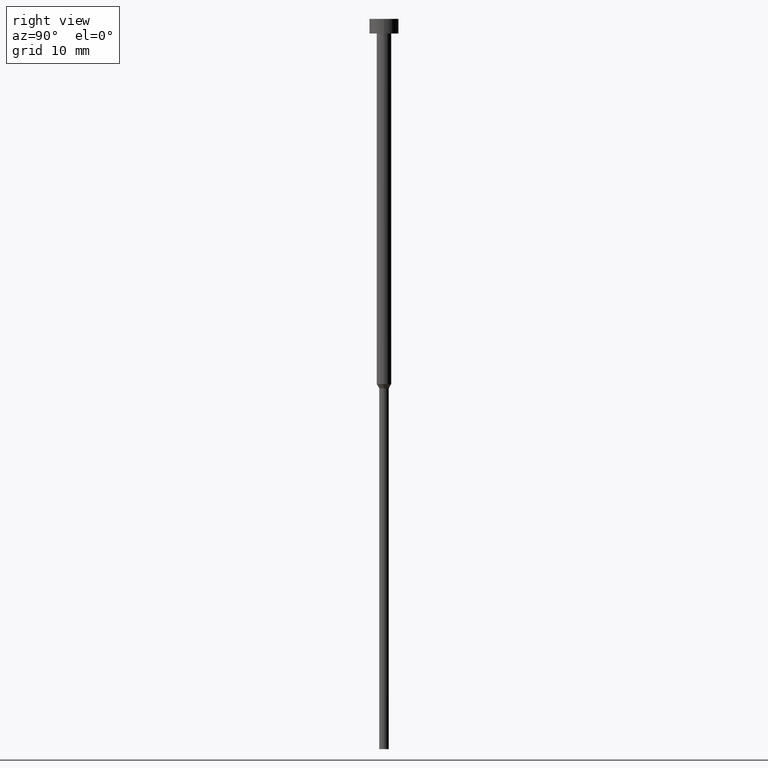
[diagram: clean part render]
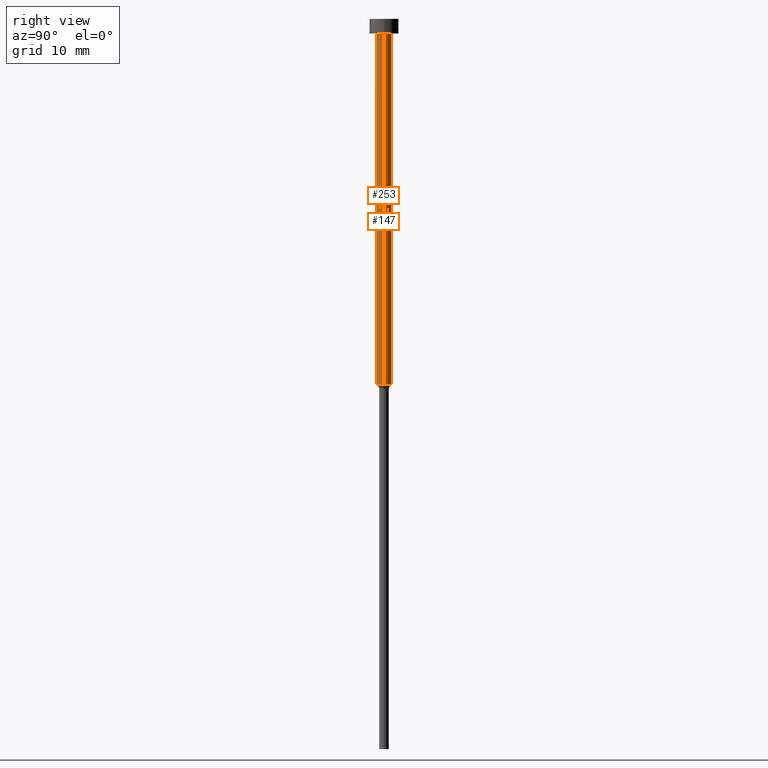
[diagram: same view with one multi-face feature highlighted, each face labeled with its STEP entity id]
A machine part, right view. The highlighted faces form ONE feature: a constant-radius fillet chain: 2 tangent blend faces with common blend radius 1 mm. The faces share edges in the B-rep.
Their STEP definitions:
[1] entity #147 (Cylinder):
#34 = CIRCLE ( 'NONE', #74, 1.000000000000003553 ) ;
#37 = EDGE_CURVE ( 'NONE', #295, #103, #34, .T. ) ;
#44 = EDGE_LOOP ( 'NONE', ( #124, #178, #60, #153 ) ) ;
#55 = CARTESIAN_POINT ( 'NONE',  ( -1.000000000000003331, 1.224646799147357151E-16, 0.000000000000000000 ) ) ;
#60 = ORIENTED_EDGE ( 'NONE', *, *, #37, .F. ) ;
#72 = CARTESIAN_POINT ( 'NONE',  ( 1.000000000000003109, 0.000000000000000000, -50.00000000000000000 ) ) ;
#74 = AXIS2_PLACEMENT_3D ( 'NONE', #234, #235, #339 ) ;
#79 = DIRECTION ( 'NONE',  ( -0.000000000000000000, -0.000000000000000000, 1.000000000000000000 ) ) ;
#92 = VERTEX_POINT ( 'NONE', #72 ) ;
#103 = VERTEX_POINT ( 'NONE', #211 ) ;
#108 = LINE ( 'NONE', #336, #135 ) ;
#121 = CARTESIAN_POINT ( 'NONE',  ( 0.000000000000000000, 0.000000000000000000, 0.000000000000000000 ) ) ;
#124 = ORIENTED_EDGE ( 'NONE', *, *, #344, .T. ) ;
#133 = LINE ( 'NONE', #55, #241 ) ;
#135 = VECTOR ( 'NONE', #273, 1000.000000000000000 ) ;
#142 = DIRECTION ( 'NONE',  ( -0.000000000000000000, -0.000000000000000000, 1.000000000000000000 ) ) ;
#147 = ADVANCED_FACE ( 'NONE', ( #270 ), #269, .T. ) ;
#151 = CIRCLE ( 'NONE', #247, 1.000000000000003109 ) ;
#153 = ORIENTED_EDGE ( 'NONE', *, *, #299, .F. ) ;
#168 = CARTESIAN_POINT ( 'NONE',  ( 0.000000000000000000, 0.000000000000000000, -50.00000000000000000 ) ) ;
#178 = ORIENTED_EDGE ( 'NONE', *, *, #319, .T. ) ;
#183 = AXIS2_PLACEMENT_3D ( 'NONE', #121, #186, #328 ) ;
#186 = DIRECTION ( 'NONE',  ( -0.000000000000000000, -0.000000000000000000, 1.000000000000000000 ) ) ;
#211 = CARTESIAN_POINT ( 'NONE',  ( -1.000000000000003553, 1.224646799147357398E-16, -2.000000000000000444 ) ) ;
#224 = CARTESIAN_POINT ( 'NONE',  ( -1.000000000000003109, 1.224646799147356905E-16, -50.00000000000000000 ) ) ;
#234 = CARTESIAN_POINT ( 'NONE',  ( 0.000000000000000000, 0.000000000000000000, -2.000000000000000444 ) ) ;
#235 = DIRECTION ( 'NONE',  ( -0.000000000000000000, -0.000000000000000000, 1.000000000000000000 ) ) ;
#241 = VECTOR ( 'NONE', #142, 1000.000000000000000 ) ;
#247 = AXIS2_PLACEMENT_3D ( 'NONE', #168, #79, #280 ) ;
#266 = VERTEX_POINT ( 'NONE', #224 ) ;
#269 = CYLINDRICAL_SURFACE ( 'NONE', #183, 1.000000000000003331 ) ;
#270 = FACE_OUTER_BOUND ( 'NONE', #44, .T. ) ;
#273 = DIRECTION ( 'NONE',  ( -0.000000000000000000, -0.000000000000000000, 1.000000000000000000 ) ) ;
#280 = DIRECTION ( 'NONE',  ( 1.000000000000000000, 0.000000000000000000, 0.000000000000000000 ) ) ;
#295 = VERTEX_POINT ( 'NONE', #334 ) ;
#299 = EDGE_CURVE ( 'NONE', #92, #295, #108, .T. ) ;
#319 = EDGE_CURVE ( 'NONE', #266, #103, #133, .T. ) ;
#328 = DIRECTION ( 'NONE',  ( 1.000000000000000000, 0.000000000000000000, 0.000000000000000000 ) ) ;
#334 = CARTESIAN_POINT ( 'NONE',  ( 1.000000000000003553, 0.000000000000000000, -2.000000000000000444 ) ) ;
#336 = CARTESIAN_POINT ( 'NONE',  ( 1.000000000000003331, 0.000000000000000000, 0.000000000000000000 ) ) ;
#339 = DIRECTION ( 'NONE',  ( 1.000000000000000000, 0.000000000000000000, 0.000000000000000000 ) ) ;
#344 = EDGE_CURVE ( 'NONE', #92, #266, #151, .T. ) ;
[2] entity #253 (Cylinder):
#17 = ORIENTED_EDGE ( 'NONE', *, *, #122, .T. ) ;
#25 = DIRECTION ( 'NONE',  ( -0.000000000000000000, -0.000000000000000000, 1.000000000000000000 ) ) ;
#55 = CARTESIAN_POINT ( 'NONE',  ( -1.000000000000003331, 1.224646799147357151E-16, 0.000000000000000000 ) ) ;
#66 = EDGE_CURVE ( 'NONE', #103, #295, #282, .T. ) ;
#72 = CARTESIAN_POINT ( 'NONE',  ( 1.000000000000003109, 0.000000000000000000, -50.00000000000000000 ) ) ;
#73 = ORIENTED_EDGE ( 'NONE', *, *, #299, .T. ) ;
#90 = DIRECTION ( 'NONE',  ( 1.000000000000000000, 0.000000000000000000, 0.000000000000000000 ) ) ;
#92 = VERTEX_POINT ( 'NONE', #72 ) ;
#99 = ORIENTED_EDGE ( 'NONE', *, *, #319, .F. ) ;
#103 = VERTEX_POINT ( 'NONE', #211 ) ;
#105 = CARTESIAN_POINT ( 'NONE',  ( 0.000000000000000000, 0.000000000000000000, 0.000000000000000000 ) ) ;
#108 = LINE ( 'NONE', #336, #135 ) ;
#113 = AXIS2_PLACEMENT_3D ( 'NONE', #182, #265, #156 ) ;
#122 = EDGE_CURVE ( 'NONE', #266, #92, #274, .T. ) ;
#133 = LINE ( 'NONE', #55, #241 ) ;
#135 = VECTOR ( 'NONE', #273, 1000.000000000000000 ) ;
#142 = DIRECTION ( 'NONE',  ( -0.000000000000000000, -0.000000000000000000, 1.000000000000000000 ) ) ;
#146 = DIRECTION ( 'NONE',  ( -0.000000000000000000, -0.000000000000000000, 1.000000000000000000 ) ) ;
#156 = DIRECTION ( 'NONE',  ( 1.000000000000000000, 0.000000000000000000, 0.000000000000000000 ) ) ;
#164 = FACE_OUTER_BOUND ( 'NONE', #337, .T. ) ;
#176 = CARTESIAN_POINT ( 'NONE',  ( 0.000000000000000000, 0.000000000000000000, -2.000000000000000444 ) ) ;
#182 = CARTESIAN_POINT ( 'NONE',  ( 0.000000000000000000, 0.000000000000000000, -50.00000000000000000 ) ) ;
#197 = DIRECTION ( 'NONE',  ( 1.000000000000000000, 0.000000000000000000, 0.000000000000000000 ) ) ;
#201 = ORIENTED_EDGE ( 'NONE', *, *, #66, .F. ) ;
#211 = CARTESIAN_POINT ( 'NONE',  ( -1.000000000000003553, 1.224646799147357398E-16, -2.000000000000000444 ) ) ;
#224 = CARTESIAN_POINT ( 'NONE',  ( -1.000000000000003109, 1.224646799147356905E-16, -50.00000000000000000 ) ) ;
#241 = VECTOR ( 'NONE', #142, 1000.000000000000000 ) ;
#253 = ADVANCED_FACE ( 'NONE', ( #164 ), #311, .T. ) ;
#259 = AXIS2_PLACEMENT_3D ( 'NONE', #105, #25, #197 ) ;
#265 = DIRECTION ( 'NONE',  ( -0.000000000000000000, -0.000000000000000000, 1.000000000000000000 ) ) ;
#266 = VERTEX_POINT ( 'NONE', #224 ) ;
#273 = DIRECTION ( 'NONE',  ( -0.000000000000000000, -0.000000000000000000, 1.000000000000000000 ) ) ;
#274 = CIRCLE ( 'NONE', #113, 1.000000000000003109 ) ;
#282 = CIRCLE ( 'NONE', #312, 1.000000000000003553 ) ;
#295 = VERTEX_POINT ( 'NONE', #334 ) ;
#299 = EDGE_CURVE ( 'NONE', #92, #295, #108, .T. ) ;
#311 = CYLINDRICAL_SURFACE ( 'NONE', #259, 1.000000000000003331 ) ;
#312 = AXIS2_PLACEMENT_3D ( 'NONE', #176, #146, #90 ) ;
#319 = EDGE_CURVE ( 'NONE', #266, #103, #133, .T. ) ;
#334 = CARTESIAN_POINT ( 'NONE',  ( 1.000000000000003553, 0.000000000000000000, -2.000000000000000444 ) ) ;
#336 = CARTESIAN_POINT ( 'NONE',  ( 1.000000000000003331, 0.000000000000000000, 0.000000000000000000 ) ) ;
#337 = EDGE_LOOP ( 'NONE', ( #99, #17, #73, #201 ) ) ;